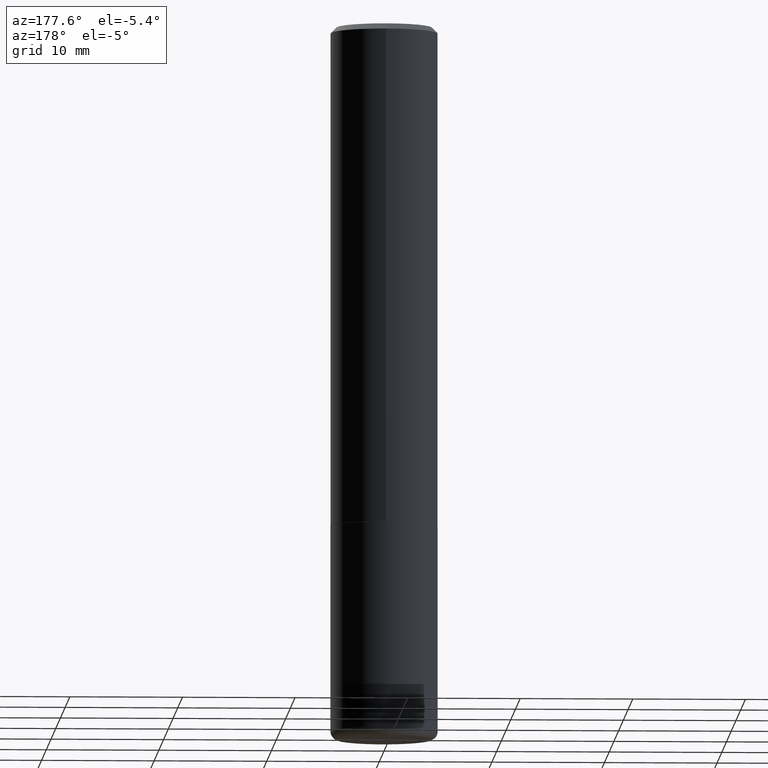
[diagram: clean part render]
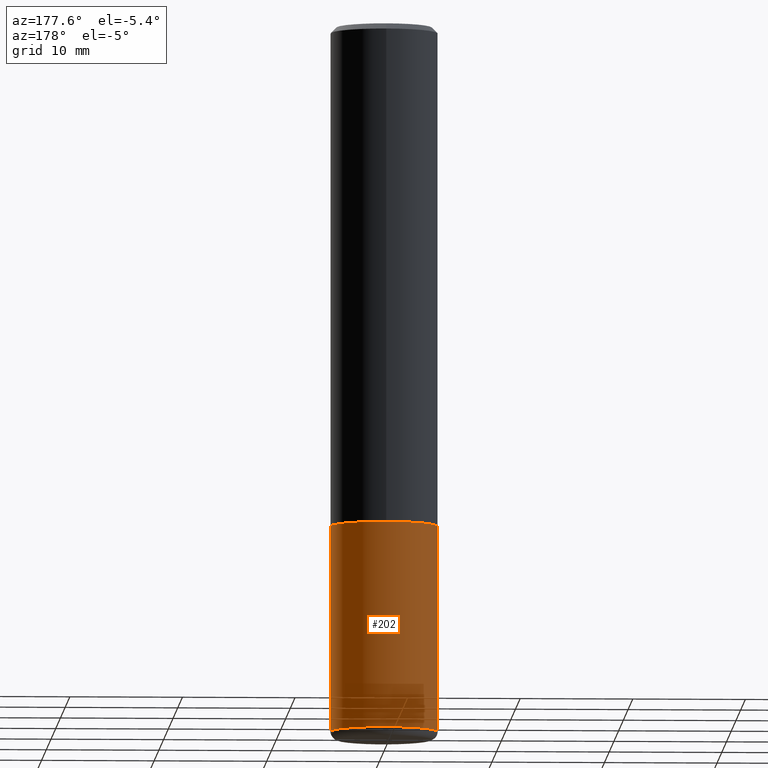
[diagram: same view with one face highlighted and labeled with its STEP entity id]
A machine part, auxiliary view. The second image highlights one B-rep face of the part: STEP entity #202.
In plain terms, the highlighted cylindrical surface (partial cylindrical patch) has radius 4.7625 mm, axis along (-0, 0, 1).
Its self-contained STEP definition (entity closure, byte-faithful):
#5 = CARTESIAN_POINT ( 'NONE',  ( 0.1875000000000000278, -7.419397845041680468E-15, -1.750000000000000222 ) ) ;
#67 = ORIENTED_EDGE ( 'NONE', *, *, #74, .F. ) ;
#69 = ORIENTED_EDGE ( 'NONE', *, *, #375, .T. ) ;
#74 = EDGE_CURVE ( 'NONE', #194, #382, #262, .T. ) ;
#76 = CYLINDRICAL_SURFACE ( 'NONE', #385, 0.1874999999999999722 ) ;
#84 = CARTESIAN_POINT ( 'NONE',  ( 4.279570410823989044E-29, -6.110092342975505460E-15, -1.750000000000000222 ) ) ;
#90 = EDGE_CURVE ( 'NONE', #237, #194, #358, .T. ) ;
#94 = ORIENTED_EDGE ( 'NONE', *, *, #90, .F. ) ;
#103 = DIRECTION ( 'NONE',  ( 1.000000000000000000, -6.982962677686266711E-15, 0.000000000000000000 ) ) ;
#104 = EDGE_LOOP ( 'NONE', ( #69, #158, #67, #94 ) ) ;
#119 = DIRECTION ( 'NONE',  ( -2.445468806185136597E-29, 3.491481338843145583E-15, 1.000000000000000000 ) ) ;
#125 = DIRECTION ( 'NONE',  ( 1.000000000000000000, -6.982962677686269077E-15, 0.000000000000000000 ) ) ;
#139 = FACE_OUTER_BOUND ( 'NONE', #104, .T. ) ;
#156 = VECTOR ( 'NONE', #361, 39.37007874015748143 ) ;
#158 = ORIENTED_EDGE ( 'NONE', *, *, #321, .T. ) ;
#160 = CARTESIAN_POINT ( 'NONE',  ( 6.040307951277287977E-29, -8.623958906942569995E-15, -2.470000000000000195 ) ) ;
#168 = DIRECTION ( 'NONE',  ( -2.445468806185136877E-29, 3.491481338843145188E-15, 1.000000000000000000 ) ) ;
#183 = CARTESIAN_POINT ( 'NONE',  ( 0.000000000000000000, 0.000000000000000000, 0.000000000000000000 ) ) ;
#194 = VERTEX_POINT ( 'NONE', #5 ) ;
#195 = CARTESIAN_POINT ( 'NONE',  ( -0.1875000000000000278, -6.034757995408850668E-15, -1.750000000000000222 ) ) ;
#202 = ADVANCED_FACE ( 'NONE', ( #139 ), #76, .T. ) ;
#213 = CARTESIAN_POINT ( 'NONE',  ( -0.1874999999999999722, -7.291691277392382147E-15, -2.470000000000000195 ) ) ;
#214 = DIRECTION ( 'NONE',  ( 1.000000000000000000, -6.982962677686266711E-15, 4.876176775795935793E-29 ) ) ;
#230 = CARTESIAN_POINT ( 'NONE',  ( -0.1874999999999999722, 1.332267629550187651E-15, -9.223003294227946589E-30 ) ) ;
#236 = DIRECTION ( 'NONE',  ( -2.445468806185136597E-29, 3.491481338843145583E-15, 1.000000000000000000 ) ) ;
#237 = VERTEX_POINT ( 'NONE', #305 ) ;
#238 = VECTOR ( 'NONE', #168, 39.37007874015748143 ) ;
#239 = CARTESIAN_POINT ( 'NONE',  ( 0.1874999999999999722, -1.309305502066174811E-15, 9.142831454617378210E-30 ) ) ;
#262 = CIRCLE ( 'NONE', #360, 0.1875000000000000278 ) ;
#275 = DIRECTION ( 'NONE',  ( -2.445468806185136597E-29, 3.491481338843145583E-15, 1.000000000000000000 ) ) ;
#305 = CARTESIAN_POINT ( 'NONE',  ( 0.1874999999999999722, -9.933264409008746581E-15, -2.470000000000000195 ) ) ;
#306 = AXIS2_PLACEMENT_3D ( 'NONE', #160, #119, #125 ) ;
#314 = CIRCLE ( 'NONE', #306, 0.1874999999999999722 ) ;
#321 = EDGE_CURVE ( 'NONE', #387, #382, #384, .T. ) ;
#358 = LINE ( 'NONE', #239, #156 ) ;
#360 = AXIS2_PLACEMENT_3D ( 'NONE', #84, #275, #103 ) ;
#361 = DIRECTION ( 'NONE',  ( -2.445468806185136877E-29, 3.491481338843145188E-15, 1.000000000000000000 ) ) ;
#375 = EDGE_CURVE ( 'NONE', #237, #387, #314, .T. ) ;
#382 = VERTEX_POINT ( 'NONE', #195 ) ;
#384 = LINE ( 'NONE', #230, #238 ) ;
#385 = AXIS2_PLACEMENT_3D ( 'NONE', #183, #236, #214 ) ;
#387 = VERTEX_POINT ( 'NONE', #213 ) ;